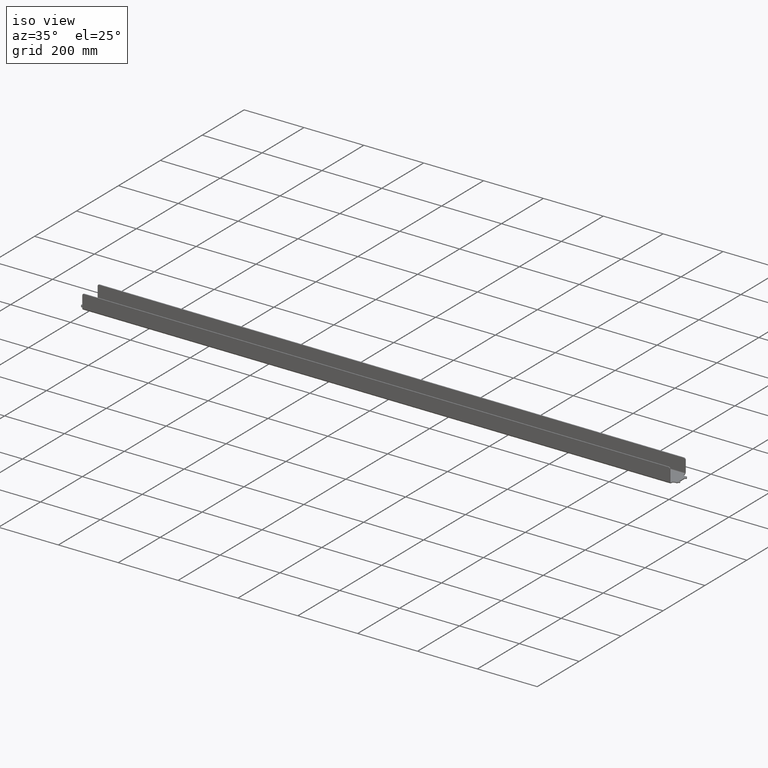
[diagram: clean part render]
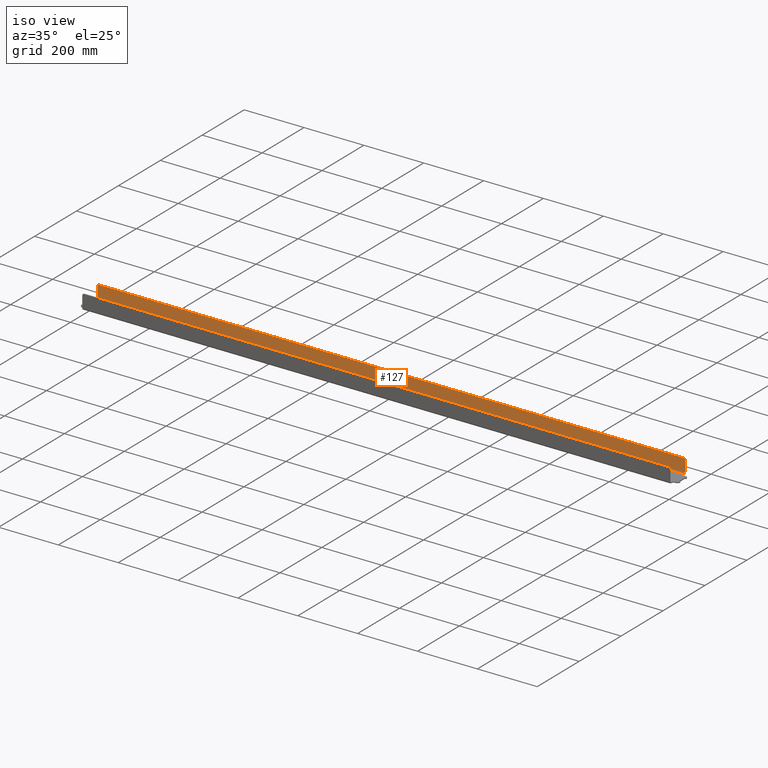
[diagram: same view with one face highlighted and labeled with its STEP entity id]
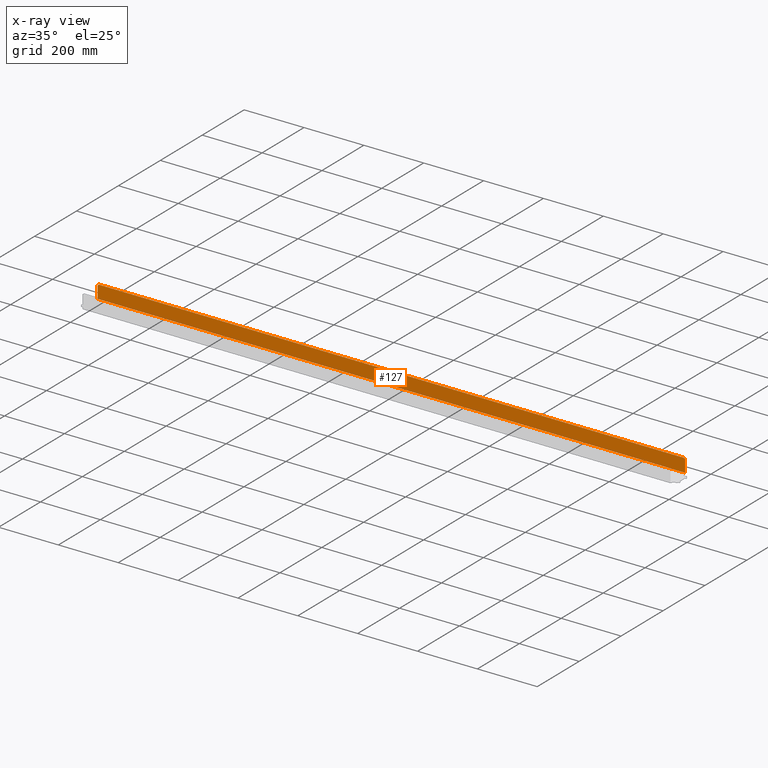
[diagram: x-ray of the same camera — body ghosted, the highlighted face saturated]
A machine part, iso view. The second image highlights one B-rep face of the part: STEP entity #127.
The next image is the same camera in x-ray: the body ghosted, the highlighted face saturated — about 0% of this face is hidden behind the body in this view.
In plain terms, the highlighted planar face has unit normal (0, -1, 0).
Its self-contained STEP definition (entity closure, byte-faithful):
#108 = CARTESIAN_POINT ( 'NONE',  ( -981.4999999999995453, -1096.805262667903889, 625.0000000000001137 ) ) ;
#127 = ADVANCED_FACE ( 'NONE', ( #1409 ), #1674, .T. ) ;
#139 = EDGE_CURVE ( 'NONE', #1476, #2487, #2968, .T. ) ;
#206 = DIRECTION ( 'NONE',  ( -1.000000000000000000, -0.000000000000000000, -0.000000000000000000 ) ) ;
#362 = DIRECTION ( 'NONE',  ( 0.000000000000000000, 0.000000000000000000, -1.000000000000000000 ) ) ;
#397 = ORIENTED_EDGE ( 'NONE', *, *, #820, .T. ) ;
#452 = VECTOR ( 'NONE', #2032, 1000.000000000000000 ) ;
#609 = VECTOR ( 'NONE', #2519, 1000.000000000000000 ) ;
#610 = AXIS2_PLACEMENT_3D ( 'NONE', #1917, #1633, #3183 ) ;
#736 = DIRECTION ( 'NONE',  ( 0.000000000000000000, 0.000000000000000000, -1.000000000000000000 ) ) ;
#820 = EDGE_CURVE ( 'NONE', #828, #2076, #1658, .T. ) ;
#828 = VERTEX_POINT ( 'NONE', #1966 ) ;
#879 = DIRECTION ( 'NONE',  ( 0.000000000000000000, 0.000000000000000000, -1.000000000000000000 ) ) ;
#886 = CARTESIAN_POINT ( 'NONE',  ( -981.4999999999995453, -1096.805262667904117, 631.0000000000001137 ) ) ;
#992 = CARTESIAN_POINT ( 'NONE',  ( -976.4999999999996589, -1096.805262667903889, 670.0000000000002274 ) ) ;
#1033 = EDGE_CURVE ( 'NONE', #2076, #1225, #1847, .T. ) ;
#1137 = EDGE_LOOP ( 'NONE', ( #2188, #2852, #1666, #397, #1625, #1289 ) ) ;
#1220 = EDGE_CURVE ( 'NONE', #2487, #828, #3132, .T. ) ;
#1225 = VERTEX_POINT ( 'NONE', #886 ) ;
#1289 = ORIENTED_EDGE ( 'NONE', *, *, #1805, .F. ) ;
#1409 = FACE_OUTER_BOUND ( 'NONE', #1137, .T. ) ;
#1446 = DIRECTION ( 'NONE',  ( 0.000000000000000000, -1.000000000000000000, 0.000000000000000000 ) ) ;
#1476 = VERTEX_POINT ( 'NONE', #3145 ) ;
#1558 = VERTEX_POINT ( 'NONE', #3113 ) ;
#1625 = ORIENTED_EDGE ( 'NONE', *, *, #1033, .T. ) ;
#1633 = DIRECTION ( 'NONE',  ( 0.000000000000000000, -1.000000000000000000, 0.000000000000000000 ) ) ;
#1658 = CIRCLE ( 'NONE', #2497, 5.000000000000004441 ) ;
#1666 = ORIENTED_EDGE ( 'NONE', *, *, #1220, .T. ) ;
#1674 = PLANE ( 'NONE',  #610 ) ;
#1805 = EDGE_CURVE ( 'NONE', #1558, #1225, #2486, .T. ) ;
#1812 = CARTESIAN_POINT ( 'NONE',  ( 981.4999999999996589, -1096.805262667903889, 625.0000000000001137 ) ) ;
#1845 = VECTOR ( 'NONE', #362, 1000.000000000000000 ) ;
#1847 = LINE ( 'NONE', #108, #1845 ) ;
#1917 = CARTESIAN_POINT ( 'NONE',  ( 1090.972523324353915, -1096.805262667903889, 625.0000000000001137 ) ) ;
#1966 = CARTESIAN_POINT ( 'NONE',  ( -976.4999999999996589, -1096.805262667903889, 675.0000000000002274 ) ) ;
#2032 = DIRECTION ( 'NONE',  ( 0.000000000000000000, 0.000000000000000000, 1.000000000000000000 ) ) ;
#2076 = VERTEX_POINT ( 'NONE', #2871 ) ;
#2188 = ORIENTED_EDGE ( 'NONE', *, *, #2573, .T. ) ;
#2320 = LINE ( 'NONE', #1812, #452 ) ;
#2425 = VECTOR ( 'NONE', #206, 1000.000000000000000 ) ;
#2486 = LINE ( 'NONE', #2531, #609 ) ;
#2487 = VERTEX_POINT ( 'NONE', #2769 ) ;
#2497 = AXIS2_PLACEMENT_3D ( 'NONE', #992, #2974, #736 ) ;
#2519 = DIRECTION ( 'NONE',  ( -1.000000000000000000, -0.000000000000000000, -0.000000000000000000 ) ) ;
#2531 = CARTESIAN_POINT ( 'NONE',  ( 1090.972523324353915, -1096.805262667903889, 631.0000000000001137 ) ) ;
#2573 = EDGE_CURVE ( 'NONE', #1558, #1476, #2320, .T. ) ;
#2618 = CARTESIAN_POINT ( 'NONE',  ( 1090.972523324353915, -1096.805262667903889, 675.0000000000002274 ) ) ;
#2769 = CARTESIAN_POINT ( 'NONE',  ( 976.4999999999996589, -1096.805262667903889, 675.0000000000002274 ) ) ;
#2852 = ORIENTED_EDGE ( 'NONE', *, *, #139, .T. ) ;
#2871 = CARTESIAN_POINT ( 'NONE',  ( -981.4999999999995453, -1096.805262667903889, 670.0000000000002274 ) ) ;
#2968 = CIRCLE ( 'NONE', #3227, 5.000000000000004441 ) ;
#2974 = DIRECTION ( 'NONE',  ( 0.000000000000000000, -1.000000000000000000, 0.000000000000000000 ) ) ;
#3113 = CARTESIAN_POINT ( 'NONE',  ( 981.4999999999996589, -1096.805262667903889, 631.0000000000001137 ) ) ;
#3130 = CARTESIAN_POINT ( 'NONE',  ( 976.4999999999996589, -1096.805262667903889, 670.0000000000002274 ) ) ;
#3132 = LINE ( 'NONE', #2618, #2425 ) ;
#3145 = CARTESIAN_POINT ( 'NONE',  ( 981.4999999999996589, -1096.805262667903889, 670.0000000000002274 ) ) ;
#3183 = DIRECTION ( 'NONE',  ( 0.000000000000000000, -0.000000000000000000, -1.000000000000000000 ) ) ;
#3227 = AXIS2_PLACEMENT_3D ( 'NONE', #3130, #1446, #879 ) ;